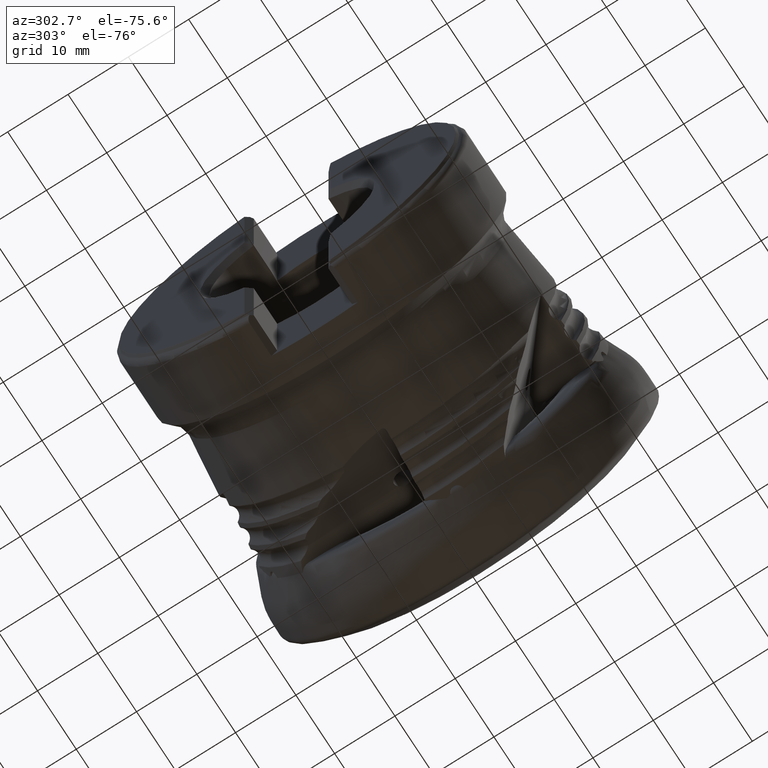
[diagram: clean part render]
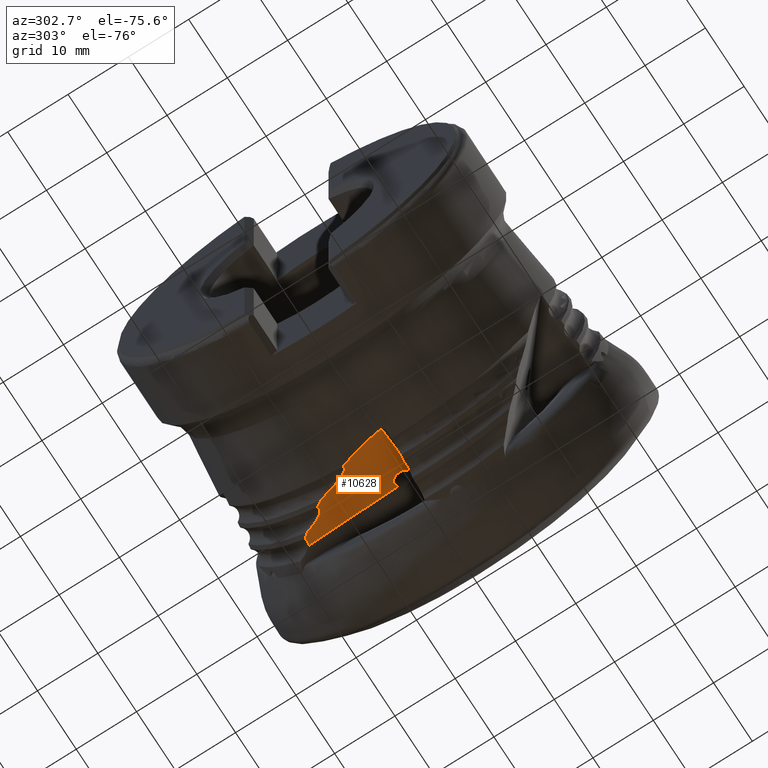
[diagram: same view with one face highlighted and labeled with its STEP entity id]
A machine part, auxiliary view. The second image highlights one B-rep face of the part: STEP entity #10628.
In plain terms, the highlighted planar face has unit normal (-0.6413, 0.0773, 0.7634).
Its self-contained STEP definition (entity closure, byte-faithful):
#37 = CARTESIAN_POINT ( 'NONE',  ( -20.73740860475427500, 10.55768673844240300, -25.39327300266086600 ) ) ;
#92 = CARTESIAN_POINT ( 'NONE',  ( -22.50765275036134500, 7.537433623843014600, -26.57429955596215300 ) ) ;
#132 = EDGE_CURVE ( 'NONE', #8349, #12237, #5092, .T. ) ;
#353 = ORIENTED_EDGE ( 'NONE', *, *, #9457, .F. ) ;
#357 = CARTESIAN_POINT ( 'NONE',  ( -15.88063901107959100, 18.28195232722886500, -22.09613479466771900 ) ) ;
#462 = CARTESIAN_POINT ( 'NONE',  ( -15.90585986724070700, 18.25498918323467000, -22.11458838197549800 ) ) ;
#524 = CARTESIAN_POINT ( 'NONE',  ( -14.73692835743344200, 1.130748559512935800, -19.39823501852699300 ) ) ;
#527 =( BOUNDED_CURVE ( )  B_SPLINE_CURVE ( 3, ( #10096, #13379, #2627, #10140 ),
 .UNSPECIFIED., .F., .T. ) 
 B_SPLINE_CURVE_WITH_KNOTS ( ( 4, 4 ),
 ( 3.646317852442705100, 3.681582439200733200 ),
 .UNSPECIFIED. ) 
 CURVE ( )  GEOMETRIC_REPRESENTATION_ITEM ( )  RATIONAL_B_SPLINE_CURVE ( ( 1.000000000000000000, 0.9998963700949660100, 0.9998963700949660100, 1.000000000000000000 ) ) 
 REPRESENTATION_ITEM ( '' )  );
#698 = CARTESIAN_POINT ( 'NONE',  ( -15.64431457968922200, 18.25441115952500200, -21.89484082887267700 ) ) ;
#842 = CARTESIAN_POINT ( 'NONE',  ( -14.74541306284122500, 0.1317328754998208200, -19.30417292427370800 ) ) ;
#854 = CARTESIAN_POINT ( 'NONE',  ( -17.86445195771177600, 14.78962574941996900, -23.40873607706216900 ) ) ;
#989 = CARTESIAN_POINT ( 'NONE',  ( -22.68404640879592900, 7.627688811873560400, -26.73160596160862900 ) ) ;
#1104 = CARTESIAN_POINT ( 'NONE',  ( -21.18397255670512900, 9.394477805643413500, -25.65055142792980200 ) ) ;
#1145 = CARTESIAN_POINT ( 'NONE',  ( -22.64558763913271400, 7.590591118639599300, -26.69554434833467800 ) ) ;
#1416 = CARTESIAN_POINT ( 'NONE',  ( -15.85302217103605400, 18.30511442207579600, -22.07528366052265800 ) ) ;
#1446 = CARTESIAN_POINT ( 'NONE',  ( -22.85898703530348200, 7.429369014102984000, -26.85846249882760300 ) ) ;
#1610 =( BOUNDED_CURVE ( )  B_SPLINE_CURVE ( 3, ( #5626, #12173, #7812, #1446 ),
 .UNSPECIFIED., .F., .T. ) 
 B_SPLINE_CURVE_WITH_KNOTS ( ( 4, 4 ),
 ( 3.229293531873537000, 3.464830686673682400 ),
 .UNSPECIFIED. ) 
 CURVE ( )  GEOMETRIC_REPRESENTATION_ITEM ( )  RATIONAL_B_SPLINE_CURVE ( ( 1.000000000000000000, 0.9953821949589460900, 0.9953821949589460900, 1.000000000000000000 ) ) 
 REPRESENTATION_ITEM ( '' )  );
#1728 = EDGE_CURVE ( 'NONE', #5258, #7723, #1895, .T. ) ;
#1895 = B_SPLINE_CURVE_WITH_KNOTS ( 'NONE', 3,
 ( #8874, #357, #1416, #2467, #9960, #3504 ),
 .UNSPECIFIED., .F., .F.,
 ( 4, 2, 4 ),
 ( 3.247632325067392900E-007, 0.0001231594369165987000, 0.0002459941106006906400 ),
 .UNSPECIFIED. ) ;
#1904 = CARTESIAN_POINT ( 'NONE',  ( -18.21071572689566400, 14.37178611795412100, -23.65726326695870400 ) ) ;
#1941 = CARTESIAN_POINT ( 'NONE',  ( -20.19804846172587200, 12.57687220508649700, -25.14474969346809300 ) ) ;
#1977 = CARTESIAN_POINT ( 'NONE',  ( -20.21284561721964600, 12.50269321951893900, -25.14966530329912700 ) ) ;
#2140 = CARTESIAN_POINT ( 'NONE',  ( -21.49206138525645600, 8.721178791201671400, -25.84113784955609800 ) ) ;
#2243 = CARTESIAN_POINT ( 'NONE',  ( -15.90585986724070700, 18.25498918323467000, -22.11458838197549800 ) ) ;
#2429 = CARTESIAN_POINT ( 'NONE',  ( -24.74990822606004000, -0.005545159367076355400, -27.69369852573473500 ) ) ;
#2467 = CARTESIAN_POINT ( 'NONE',  ( -15.79236086194650600, 18.33314301793343000, -22.02716923531184900 ) ) ;
#2489 = LINE ( 'NONE', #842, #9704 ) ;
#2627 = CARTESIAN_POINT ( 'NONE',  ( -19.61460204098277100, 13.59852062720693100, -24.75815624978795200 ) ) ;
#2774 = B_SPLINE_CURVE_WITH_KNOTS ( 'NONE', 3,
 ( #11289, #8994, #5852, #13455 ),
 .UNSPECIFIED., .F., .F.,
 ( 4, 4 ),
 ( 0.0005031993101237315600, 0.0008654744990576309200 ),
 .UNSPECIFIED. ) ;
#2895 = CARTESIAN_POINT ( 'NONE',  ( -16.83753142971312800, 16.82351816521234900, -22.75216853546927400 ) ) ;
#2936 = CARTESIAN_POINT ( 'NONE',  ( -18.61260587758132700, 14.03951519524429000, -23.96118183488526300 ) ) ;
#3027 = CARTESIAN_POINT ( 'NONE',  ( -20.09658601792705900, 12.85316791125993600, -25.08751036603575800 ) ) ;
#3034 = CARTESIAN_POINT ( 'NONE',  ( -22.85898703530348200, 7.429369014102984000, -26.85846249882760300 ) ) ;
#3186 = EDGE_CURVE ( 'NONE', #12859, #11310, #8560, .T. ) ;
#3193 = CARTESIAN_POINT ( 'NONE',  ( -21.78740448822225100, 8.190778526941622700, -26.03549232404419200 ) ) ;
#3322 = CARTESIAN_POINT ( 'NONE',  ( -14.73692835743344200, 1.130748559512935800, -19.39823501852699300 ) ) ;
#3457 = CARTESIAN_POINT ( 'NONE',  ( -19.33392518145236500, 14.00156442363585700, -24.56322114793816200 ) ) ;
#3500 = ORIENTED_EDGE ( 'NONE', *, *, #4943, .F. ) ;
#3504 = CARTESIAN_POINT ( 'NONE',  ( -15.73091924072486200, 18.31726440946174600, -21.97395207325292100 ) ) ;
#3785 = CARTESIAN_POINT ( 'NONE',  ( -14.67487224676652100, 18.52419754906706500, -21.10786906102066500 ) ) ;
#3846 = DIRECTION ( 'NONE',  ( -0.6412508018089283500, 0.07732631169424722400, 0.7634252096303675300 ) ) ;
#3940 = EDGE_CURVE ( 'NONE', #11795, #7365, #4964, .T. ) ;
#3991 = CARTESIAN_POINT ( 'NONE',  ( -18.91504970278402100, 13.94809881067391900, -24.20596475691716900 ) ) ;
#4004 = CARTESIAN_POINT ( 'NONE',  ( -20.05829280485863800, 12.91346263317930700, -25.06145256119467700 ) ) ;
#4082 = CARTESIAN_POINT ( 'NONE',  ( -22.81829051418029400, 7.526343088843638000, -26.83410120051466700 ) ) ;
#4235 = CARTESIAN_POINT ( 'NONE',  ( -21.98858824264196700, 7.897785064714070400, -26.17480281406518100 ) ) ;
#4449 = EDGE_CURVE ( 'Kante124', #6451, #11795, #12832, .T. ) ;
#4517 = CARTESIAN_POINT ( 'NONE',  ( -19.27279041686156800, 14.04455649314982000, -24.51622466656443000 ) ) ;
#4599 = CARTESIAN_POINT ( 'NONE',  ( -16.36031451272004100, 17.76274276855672700, -22.44645560735874700 ) ) ;
#4618 = VECTOR ( 'NONE', #6960, 1000.000000000000100 ) ;
#4671 = CARTESIAN_POINT ( 'NONE',  ( -16.63141331468503700, 3.552626142948823500, -21.23484565316071800 ) ) ;
#4674 = ORIENTED_EDGE ( 'NONE', *, *, #10784, .T. ) ;
#4757 = EDGE_CURVE ( 'NONE', #13603, #11310, #13250, .T. ) ;
#4848 = CARTESIAN_POINT ( 'NONE',  ( -14.94941276981207200, 18.34153211416847600, -21.31997167976398800 ) ) ;
#4889 = ORIENTED_EDGE ( 'NONE', *, *, #13911, .T. ) ;
#4943 = EDGE_CURVE ( 'NONE', #12118, #7723, #7149, .T. ) ;
#4964 = LINE ( 'NONE', #9159, #4618 ) ;
#4969 = ORIENTED_EDGE ( 'NONE', *, *, #4449, .T. ) ;
#5011 = EDGE_CURVE ( 'NONE', #12118, #6451, #2489, .T. ) ;
#5061 = CARTESIAN_POINT ( 'NONE',  ( -19.14199430956676600, 13.98944635753092100, -24.40077842364651400 ) ) ;
#5092 = B_SPLINE_CURVE_WITH_KNOTS ( 'NONE', 3,
 ( #1977, #1941, #6179, #9468, #3027, #10560 ),
 .UNSPECIFIED., .F., .F.,
 ( 4, 2, 4 ),
 ( 1.011329633531516100E-006, 0.0002250849773813711100, 0.0004491586251292106700 ),
 .UNSPECIFIED. ) ;
#5141 = CARTESIAN_POINT ( 'NONE',  ( -22.76193291372900500, 7.611287287559995300, -26.79536664666731100 ) ) ;
#5144 = LINE ( 'NONE', #2429, #13474 ) ;
#5258 = VERTEX_POINT ( 'NONE', #2243 ) ;
#5306 = CARTESIAN_POINT ( 'NONE',  ( -22.22232304920876400, 7.648604620263851600, -26.34589282492450100 ) ) ;
#5584 = CARTESIAN_POINT ( 'NONE',  ( -19.22184483401754200, 14.04914855879538200, -24.47389726115484300 ) ) ;
#5626 = CARTESIAN_POINT ( 'NONE',  ( -24.70083470848054600, -0.002113604731891934000, -27.65282604387468300 ) ) ;
#5751 = CARTESIAN_POINT ( 'NONE',  ( -16.64301382976886500, 2.186745307446369400, -21.10624145410381700 ) ) ;
#5809 = CARTESIAN_POINT ( 'NONE',  ( -14.71592323075993700, 3.603957702668210600, -19.63109946225328900 ) ) ;
#5852 = CARTESIAN_POINT ( 'NONE',  ( -16.65372847278884900, 17.43210545163715600, -22.65942338845795900 ) ) ;
#5911 = ORIENTED_EDGE ( 'NONE', *, *, #132, .T. ) ;
#5931 = CARTESIAN_POINT ( 'NONE',  ( -15.24425908267375200, 18.22635377610626500, -21.55596613762418900 ) ) ;
#5956 = CARTESIAN_POINT ( 'NONE',  ( -14.58857736291004800, 18.59805745769143200, -21.04286551054451200 ) ) ;
#5966 = ORIENTED_EDGE ( 'NONE', *, *, #3186, .T. ) ;
#6001 = CARTESIAN_POINT ( 'NONE',  ( -15.73091924072486200, 18.31726440946174600, -21.97395207325292100 ) ) ;
#6092 = CARTESIAN_POINT ( 'NONE',  ( -17.27841536135099400, 15.75596748863931900, -23.01436503589434000 ) ) ;
#6142 = ORIENTED_EDGE ( 'NONE', *, *, #6441, .T. ) ;
#6179 = CARTESIAN_POINT ( 'NONE',  ( -20.17775100518921500, 12.64825676594391800, -25.13493097726481600 ) ) ;
#6186 = B_SPLINE_CURVE_WITH_KNOTS ( 'NONE', 3,
 ( #3034, #7277, #4082, #11680, #5141, #12758, #6228, #13856, #7321, #989 ),
 .UNSPECIFIED., .F., .F.,
 ( 4, 2, 2, 2, 4 ),
 ( 5.537280684037081300E-007, 0.0001615477511554932500, 0.0002420447626990354300, 0.0002822932684708100100, 0.0003225417742425845700 ),
 .UNSPECIFIED. ) ;
#6228 = CARTESIAN_POINT ( 'NONE',  ( -22.72379459077311000, 7.638165905423894000, -26.76605427197758800 ) ) ;
#6279 = ORIENTED_EDGE ( 'NONE', *, *, #13400, .T. ) ;
#6355 = CARTESIAN_POINT ( 'NONE',  ( -20.44194375480871500, 11.51555318913563900, -25.24211373944757900 ) ) ;
#6399 = CARTESIAN_POINT ( 'NONE',  ( -22.45733211111400600, 7.539217645944959600, -26.53221265863356800 ) ) ;
#6441 = EDGE_CURVE ( 'NONE', #12237, #12859, #527, .T. ) ;
#6451 = VERTEX_POINT ( 'NONE', #5809 ) ;
#6577 = CARTESIAN_POINT ( 'NONE',  ( -19.38242345127620700, 13.93698859227846900, -24.59741722008525500 ) ) ;
#6784 = CARTESIAN_POINT ( 'NONE',  ( -16.13501011414253500, 18.01000895480578000, -22.28225295532651600 ) ) ;
#6818 = VERTEX_POINT ( 'NONE', #9394 ) ;
#6858 = CARTESIAN_POINT ( 'NONE',  ( -15.66981989940177800, 0.2752752279815784400, -20.09518194285697100 ) ) ;
#6960 = DIRECTION ( 'NONE',  ( -0.008455365442190103400, -0.9955611049336791100, 0.09373682914666529900 ) ) ;
#7029 = CARTESIAN_POINT ( 'NONE',  ( -15.54537783855138900, 18.22202470549650100, -21.80845700398719000 ) ) ;
#7032 = ORIENTED_EDGE ( 'NONE', *, *, #4757, .F. ) ;
#7093 = EDGE_LOOP ( 'NONE', ( #11416, #4969, #13305, #6279, #4889, #4674, #353, #5911, #6142, #5966, #7032, #12154, #12683, #11575, #3500 ) ) ;
#7133 = EDGE_CURVE ( 'NONE', #13603, #8741, #2774, .T. ) ;
#7149 = B_SPLINE_CURVE_WITH_KNOTS ( 'NONE', 3,
 ( #9183, #3785, #11372, #4848, #12472, #5931, #13548, #7029, #698, #8127 ),
 .UNSPECIFIED., .F., .F.,
 ( 4, 2, 2, 2, 4 ),
 ( 0.0001907705115792472200, 0.0005824372260205341000, 0.0009741039404618209800, 0.001365770654903108000, 0.001757437369344394600 ),
 .UNSPECIFIED. ) ;
#7169 = DIRECTION ( 'NONE',  ( -0.008455365442190103400, -0.9955611049336791100, 0.09373682914666529900 ) ) ;
#7187 = CARTESIAN_POINT ( 'NONE',  ( -17.75773806148775700, 14.94216368885915900, -23.33455045343708500 ) ) ;
#7277 = CARTESIAN_POINT ( 'NONE',  ( -22.83959558783776000, 7.478663089789175300, -26.84716728344085400 ) ) ;
#7321 = CARTESIAN_POINT ( 'NONE',  ( -22.69232095297116900, 7.635670515708342000, -26.73936474888842000 ) ) ;
#7365 = VERTEX_POINT ( 'NONE', #7418 ) ;
#7418 = CARTESIAN_POINT ( 'NONE',  ( -14.74063453679425200, 0.6943714395931416300, -19.35714803016361800 ) ) ;
#7444 = CARTESIAN_POINT ( 'NONE',  ( -20.90382930776950600, 10.08688724635108100, -25.48537399708469300 ) ) ;
#7485 = CARTESIAN_POINT ( 'NONE',  ( -22.60146177983599000, 7.563127603578406500, -26.65569840848800000 ) ) ;
#7599 = CARTESIAN_POINT ( 'NONE',  ( -24.70083470848054600, -0.002113604731891934000, -27.65282604387468300 ) ) ;
#7723 = VERTEX_POINT ( 'NONE', #6001 ) ;
#7812 = CARTESIAN_POINT ( 'NONE',  ( -23.81924665907077500, 4.988338727004224500, -27.41779873696017600 ) ) ;
#7894 = CARTESIAN_POINT ( 'NONE',  ( -15.63576640098215300, 4.284840366862207300, -20.47270163553390900 ) ) ;
#8127 = CARTESIAN_POINT ( 'NONE',  ( -15.73091924072486200, 18.31726440946174600, -21.97395207325292100 ) ) ;
#8273 = B_SPLINE_CURVE_WITH_KNOTS ( 'NONE', 3,
 ( #8496, #10652, #6355, #37, #7444, #1104, #8544, #2140, #9640, #3193, #10737, #4235, #11853, #5306, #12922, #6399, #92, #7485, #1145, #8594 ),
 .UNSPECIFIED., .F., .F.,
 ( 4, 2, 2, 2, 2, 2, 2, 2, 2, 4 ),
 ( 1.016391808546492600E-006, 0.001521600763795979700, 0.003042185135783412900, 0.003802477321777127400, 0.004562769507770841400, 0.004942915600767696900, 0.005323061693764553200, 0.005703207786761407800, 0.005893280833259840300, 0.006083353879758272000 ),
 .UNSPECIFIED. ) ;
#8288 = CARTESIAN_POINT ( 'NONE',  ( -18.09124800821033200, 14.50442918257634500, -23.57034974799026400 ) ) ;
#8349 = VERTEX_POINT ( 'NONE', #11025 ) ;
#8422 = EDGE_CURVE ( 'NONE', #8741, #5258, #13499, .T. ) ;
#8496 = CARTESIAN_POINT ( 'NONE',  ( -20.21284561721964600, 12.50269321951893900, -25.14966530329912700 ) ) ;
#8526 = AXIS2_PLACEMENT_3D ( 'NONE', #11194, #3846, #11433 ) ;
#8544 = CARTESIAN_POINT ( 'NONE',  ( -21.28218390318373900, 9.166977807064572700, -25.71000239745904600 ) ) ;
#8560 = B_SPLINE_CURVE_WITH_KNOTS ( 'NONE', 3,
 ( #9920, #8780, #3457, #11030, #4517, #12133, #5584, #13206 ),
 .UNSPECIFIED., .F., .F.,
 ( 4, 2, 2, 4 ),
 ( 3.766450204617078300E-007, 0.0001308921060263479300, 0.0001961498365292931900, 0.0002614075670322385000 ),
 .UNSPECIFIED. ) ;
#8594 = CARTESIAN_POINT ( 'NONE',  ( -22.68404640879592900, 7.627688811873560400, -26.73160596160862900 ) ) ;
#8595 = FACE_OUTER_BOUND ( 'NONE', #7093, .T. ) ;
#8741 = VERTEX_POINT ( 'NONE', #10445 ) ;
#8780 = CARTESIAN_POINT ( 'NONE',  ( -19.35931506954557700, 13.97067579380011000, -24.58141910905324700 ) ) ;
#8874 = CARTESIAN_POINT ( 'NONE',  ( -15.90585986724070700, 18.25498918323467000, -22.11458838197549800 ) ) ;
#8994 = CARTESIAN_POINT ( 'NONE',  ( -16.70598780991551300, 17.32368490277135800, -22.69233765479582800 ) ) ;
#9159 = CARTESIAN_POINT ( 'NONE',  ( -14.74541306284122500, 0.1317328754998208200, -19.30417292427370800 ) ) ;
#9177 = CARTESIAN_POINT ( 'NONE',  ( -16.73628203318752500, 17.20849753877558200, -22.70611658273675500 ) ) ;
#9183 = CARTESIAN_POINT ( 'NONE',  ( -14.58857736291004800, 18.59805745769143200, -21.04286551054451200 ) ) ;
#9379 = CARTESIAN_POINT ( 'NONE',  ( -18.47033551975568600, 14.14042547222780000, -23.85190071547011900 ) ) ;
#9394 = CARTESIAN_POINT ( 'NONE',  ( -22.85898703530348200, 7.429369014102984000, -26.85846249882760300 ) ) ;
#9457 = EDGE_CURVE ( 'NONE', #8349, #13875, #8273, .T. ) ;
#9468 = CARTESIAN_POINT ( 'NONE',  ( -20.12709368649191400, 12.78591368839914600, -25.10632366398252200 ) ) ;
#9640 = CARTESIAN_POINT ( 'NONE',  ( -21.60335534935985900, 8.502735398128969300, -25.91249509729996300 ) ) ;
#9704 = VECTOR ( 'NONE', #7169, 1000.000000000000100 ) ;
#9906 = CARTESIAN_POINT ( 'NONE',  ( -22.68404640879592900, 7.627688811873560400, -26.73160596160862900 ) ) ;
#9920 = CARTESIAN_POINT ( 'NONE',  ( -19.38242345127620700, 13.93698859227846900, -24.59741722008525500 ) ) ;
#9960 = CARTESIAN_POINT ( 'NONE',  ( -15.75806900688078300, 18.33696832628430700, -21.99875272208058500 ) ) ;
#10096 = CARTESIAN_POINT ( 'NONE',  ( -20.05829280485863800, 12.91346263317930700, -25.06145256119467700 ) ) ;
#10140 = CARTESIAN_POINT ( 'NONE',  ( -19.38242345127620700, 13.93698859227846900, -24.59741722008525500 ) ) ;
#10324 = PLANE ( 'NONE',  #8526 ) ;
#10421 = CARTESIAN_POINT ( 'NONE',  ( -16.73628203318752500, 17.20849753877558200, -22.70611658273675500 ) ) ;
#10445 = CARTESIAN_POINT ( 'NONE',  ( -16.58172922082312800, 17.51323874019815500, -22.60716438575626700 ) ) ;
#10473 = CARTESIAN_POINT ( 'NONE',  ( -18.83777621484481600, 13.96146416413993000, -24.14241145529767300 ) ) ;
#10560 = CARTESIAN_POINT ( 'NONE',  ( -20.05829280485863800, 12.91346263317930700, -25.06145256119467700 ) ) ;
#10628 = ADVANCED_FACE ( 'NONE', ( #8595 ), #10324, .F. ) ;
#10652 = CARTESIAN_POINT ( 'NONE',  ( -20.31260391629108100, 12.00259916899703700, -25.18280497503174300 ) ) ;
#10737 = CARTESIAN_POINT ( 'NONE',  ( -21.85145222518870200, 8.089778889828775000, -26.07906009315086500 ) ) ;
#10784 = EDGE_CURVE ( 'NONE', #6818, #13875, #6186, .T. ) ;
#11025 = CARTESIAN_POINT ( 'NONE',  ( -20.21284561721964600, 12.50269321951893900, -25.14966530329912700 ) ) ;
#11030 = CARTESIAN_POINT ( 'NONE',  ( -19.28895493789007200, 14.03552861198668100, -24.52888788385889600 ) ) ;
#11194 = CARTESIAN_POINT ( 'NONE',  ( -14.74541306284122500, 0.1317328754998207100, -19.30417292427370800 ) ) ;
#11281 = VERTEX_POINT ( 'NONE', #7599 ) ;
#11289 = CARTESIAN_POINT ( 'NONE',  ( -16.73628203318752500, 17.20849753877558200, -22.70611658273675500 ) ) ;
#11310 = VERTEX_POINT ( 'NONE', #12006 ) ;
#11372 = CARTESIAN_POINT ( 'NONE',  ( -14.76391762027453300, 18.45717426750530500, -21.17587540053323600 ) ) ;
#11416 = ORIENTED_EDGE ( 'NONE', *, *, #5011, .T. ) ;
#11433 = DIRECTION ( 'NONE',  ( 0.7657178928506025400, 0.0000000000000000000, 0.6431765765079082700 ) ) ;
#11575 = ORIENTED_EDGE ( 'NONE', *, *, #1728, .T. ) ;
#11579 = CARTESIAN_POINT ( 'NONE',  ( -19.06801515487309500, 13.96171130633302900, -24.33582924348744600 ) ) ;
#11680 = CARTESIAN_POINT ( 'NONE',  ( -22.77743604476754100, 7.590358898701762900, -26.80626893281650800 ) ) ;
#11795 = VERTEX_POINT ( 'NONE', #3322 ) ;
#11853 = CARTESIAN_POINT ( 'NONE',  ( -22.06181957235091000, 7.806145835036128100, -26.22703258687450000 ) ) ;
#12006 = CARTESIAN_POINT ( 'NONE',  ( -19.20748282476042900, 14.03841045059576200, -24.46074602102455800 ) ) ;
#12118 = VERTEX_POINT ( 'NONE', #5956 ) ;
#12133 = CARTESIAN_POINT ( 'NONE',  ( -19.23944162776783500, 14.05175304849412400, -24.48894176523855400 ) ) ;
#12136 = DIRECTION ( 'NONE',  ( -0.7672847685016596100, -0.05365377771412032500, -0.6390581790121759900 ) ) ;
#12154 = ORIENTED_EDGE ( 'NONE', *, *, #7133, .T. ) ;
#12173 = CARTESIAN_POINT ( 'NONE',  ( -24.43604413395194900, 2.499685739749285800, -27.68381499653366300 ) ) ;
#12229 = CARTESIAN_POINT ( 'NONE',  ( -16.58172922082312800, 17.51323874019815500, -22.60716438575626700 ) ) ;
#12237 = VERTEX_POINT ( 'NONE', #4004 ) ;
#12293 = CARTESIAN_POINT ( 'NONE',  ( -14.71592323075993700, 3.603957702668210600, -19.63109946225328900 ) ) ;
#12472 = CARTESIAN_POINT ( 'NONE',  ( -15.04650493972103600, 18.29268377587328900, -21.39657796579303900 ) ) ;
#12622 = CARTESIAN_POINT ( 'NONE',  ( -16.96992041065851000, 16.45838196785103600, -22.82638655192868200 ) ) ;
#12677 = CARTESIAN_POINT ( 'NONE',  ( -19.20748282476042900, 14.03841045059576200, -24.46074602102455800 ) ) ;
#12683 = ORIENTED_EDGE ( 'NONE', *, *, #8422, .T. ) ;
#12758 = CARTESIAN_POINT ( 'NONE',  ( -22.73406203827220700, 7.632757567394818900, -26.77413076988644700 ) ) ;
#12832 =( BOUNDED_CURVE ( )  B_SPLINE_CURVE ( 3, ( #12293, #7894, #4671, #5751, #13372, #6858, #524 ),
 .UNSPECIFIED., .F., .T. ) 
 B_SPLINE_CURVE_WITH_KNOTS ( ( 4, 3, 4 ),
 ( 0.8273494439649657900, 2.995437101720208200, 5.163524759475450300 ),
 .UNSPECIFIED. ) 
 CURVE ( )  GEOMETRIC_REPRESENTATION_ITEM ( )  RATIONAL_B_SPLINE_CURVE ( ( 1.000000000000000000, 0.6451720224933741300, 0.6451720224933741300, 1.000000000000000000, 0.6451720224933741300, 0.6451720224933741300, 1.000000000000000000 ) ) 
 REPRESENTATION_ITEM ( '' )  );
#12859 = VERTEX_POINT ( 'NONE', #6577 ) ;
#12922 = CARTESIAN_POINT ( 'NONE',  ( -22.31203029886728100, 7.579740629687852200, -26.41426867459954800 ) ) ;
#13206 = CARTESIAN_POINT ( 'NONE',  ( -19.20748282476042900, 14.03841045059576200, -24.46074602102455800 ) ) ;
#13250 = B_SPLINE_CURVE_WITH_KNOTS ( 'NONE', 3,
 ( #10421, #2895, #12622, #6092, #13714, #7187, #854, #8288, #1904, #9379, #2936, #10473, #3991, #11579, #5061, #12677 ),
 .UNSPECIFIED., .F., .F.,
 ( 4, 2, 2, 2, 2, 2, 2, 4 ),
 ( 7.800189654024244200E-007, 0.001185173469785826000, 0.002369566920606249300, 0.002961763646016461300, 0.003553960371426672900, 0.004146157096836885000, 0.004442255459541987800, 0.004738353822247089700 ),
 .UNSPECIFIED. ) ;
#13305 = ORIENTED_EDGE ( 'NONE', *, *, #3940, .T. ) ;
#13372 = CARTESIAN_POINT ( 'NONE',  ( -16.65461434485269600, 0.8208644719439153200, -20.97763725504691500 ) ) ;
#13379 = CARTESIAN_POINT ( 'NONE',  ( -19.83991517468890100, 13.25730994787691400, -24.91285072779849200 ) ) ;
#13400 = EDGE_CURVE ( 'NONE', #7365, #11281, #5144, .T. ) ;
#13455 = CARTESIAN_POINT ( 'NONE',  ( -16.58172922082312800, 17.51323874019815500, -22.60716438575626700 ) ) ;
#13474 = VECTOR ( 'NONE', #12136, 1000.000000000000000 ) ;
#13499 =( BOUNDED_CURVE ( )  B_SPLINE_CURVE ( 3, ( #12229, #4599, #6784, #462 ),
 .UNSPECIFIED., .F., .T. ) 
 B_SPLINE_CURVE_WITH_KNOTS ( ( 4, 4 ),
 ( 3.810000368605417800, 3.837899751933309100 ),
 .UNSPECIFIED. ) 
 CURVE ( )  GEOMETRIC_REPRESENTATION_ITEM ( )  RATIONAL_B_SPLINE_CURVE ( ( 1.000000000000000000, 0.9999351364193419500, 0.9999351364193419500, 1.000000000000000000 ) ) 
 REPRESENTATION_ITEM ( '' )  );
#13548 = CARTESIAN_POINT ( 'NONE',  ( -15.34675650233438100, 18.20857372419403900, -21.64025951160877200 ) ) ;
#13603 = VERTEX_POINT ( 'NONE', #9177 ) ;
#13714 = CARTESIAN_POINT ( 'NONE',  ( -17.45611975891429400, 15.41654537249212400, -23.12925098145512200 ) ) ;
#13856 = CARTESIAN_POINT ( 'NONE',  ( -22.70267597569882400, 7.639946809310229600, -26.74849575026339100 ) ) ;
#13875 = VERTEX_POINT ( 'NONE', #9906 ) ;
#13911 = EDGE_CURVE ( 'NONE', #11281, #6818, #1610, .T. ) ;